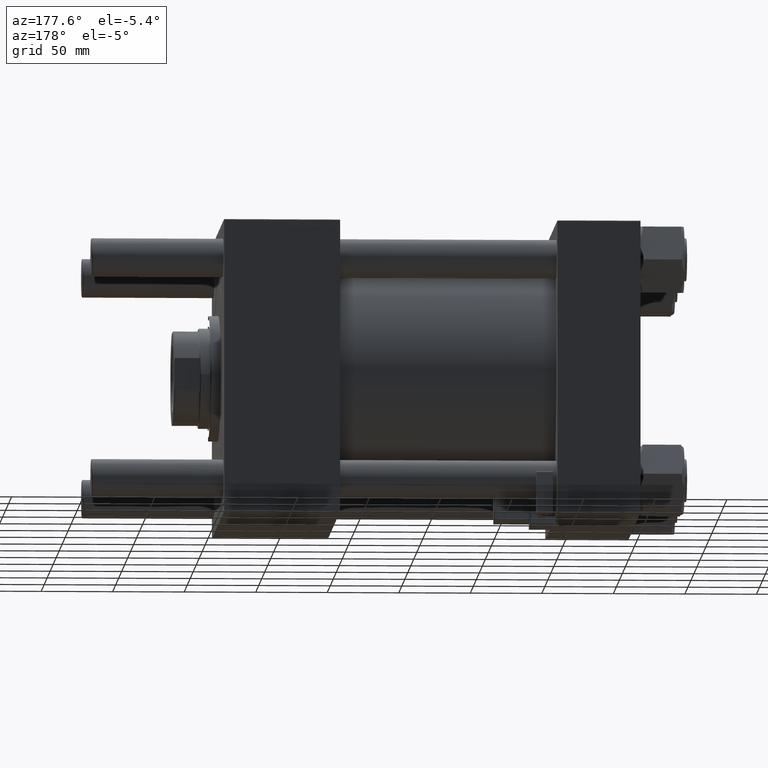
[diagram: clean part render]
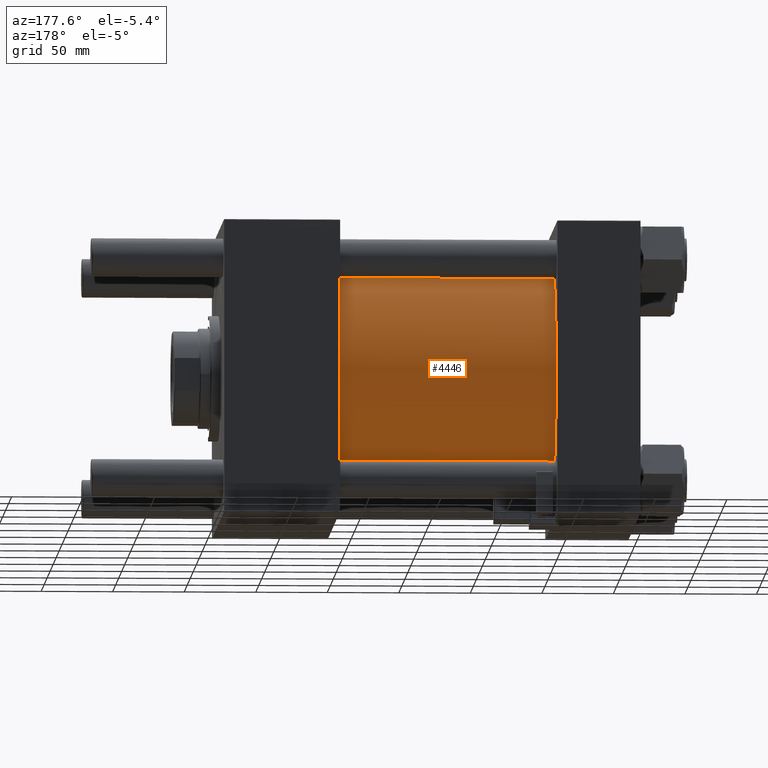
[diagram: same view with one face highlighted and labeled with its STEP entity id]
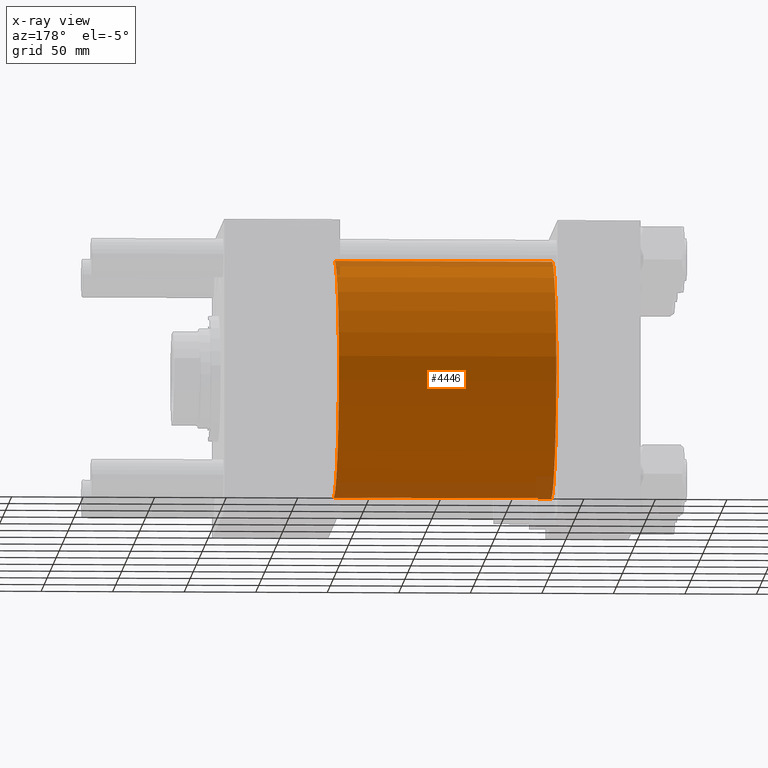
[diagram: x-ray of the same camera — body ghosted, the highlighted face saturated]
A machine part, auxiliary view. The second image highlights one B-rep face of the part: STEP entity #4446.
The next image is the same camera in x-ray: the body ghosted, the highlighted face saturated — about 9% of this face is hidden behind the body in this view.
In plain terms, the highlighted cylindrical surface (partial cylindrical patch) has radius 83 mm, axis along (-1, -0, -0).
Its self-contained STEP definition (entity closure, byte-faithful):
#1044 = VERTEX_POINT ( 'NONE', #18972 ) ;
#1262 = AXIS2_PLACEMENT_3D ( 'NONE', #35292, #30793, #22374 ) ;
#2935 = EDGE_CURVE ( 'NONE', #1044, #17699, #16796, .T. ) ;
#3194 = CIRCLE ( 'NONE', #1262, 83.00000000000000000 ) ;
#3994 = LINE ( 'NONE', #4576, #30600 ) ;
#4161 = ORIENTED_EDGE ( 'NONE', *, *, #41527, .T. ) ;
#4446 = ADVANCED_FACE ( 'NONE', ( #25726 ), #40136, .T. ) ;
#4576 = CARTESIAN_POINT ( 'NONE',  ( 210.0000000000000000, 7.562483218957820855E-15, -83.00000000000000000 ) ) ;
#10563 = DIRECTION ( 'NONE',  ( 1.000000000000000000, -0.000000000000000000, -0.000000000000000000 ) ) ;
#11261 = VERTEX_POINT ( 'NONE', #44503 ) ;
#11881 = CARTESIAN_POINT ( 'NONE',  ( 210.0000000000000000, -2.602085213965210642E-15, 0.000000000000000000 ) ) ;
#14469 = AXIS2_PLACEMENT_3D ( 'NONE', #46993, #10563, #38224 ) ;
#16796 = LINE ( 'NONE', #29171, #40302 ) ;
#17699 = VERTEX_POINT ( 'NONE', #40193 ) ;
#17823 = EDGE_CURVE ( 'NONE', #11261, #1044, #3194, .T. ) ;
#18972 = CARTESIAN_POINT ( 'NONE',  ( 210.0000000000000000, -2.602085213965210642E-15, 83.00000000000000000 ) ) ;
#20903 = DIRECTION ( 'NONE',  ( 0.000000000000000000, 0.000000000000000000, 1.000000000000000000 ) ) ;
#22374 = DIRECTION ( 'NONE',  ( 0.000000000000000000, 0.000000000000000000, -1.000000000000000000 ) ) ;
#24621 = ORIENTED_EDGE ( 'NONE', *, *, #2935, .F. ) ;
#25726 = FACE_OUTER_BOUND ( 'NONE', #43968, .T. ) ;
#29171 = CARTESIAN_POINT ( 'NONE',  ( 210.0000000000000000, -2.602085213965210642E-15, 83.00000000000000000 ) ) ;
#29777 = AXIS2_PLACEMENT_3D ( 'NONE', #11881, #48300, #20903 ) ;
#30600 = VECTOR ( 'NONE', #31978, 1000.000000000000000 ) ;
#30793 = DIRECTION ( 'NONE',  ( 1.000000000000000000, 0.000000000000000000, 0.000000000000000000 ) ) ;
#31978 = DIRECTION ( 'NONE',  ( -1.000000000000000000, -0.000000000000000000, -0.000000000000000000 ) ) ;
#32057 = ORIENTED_EDGE ( 'NONE', *, *, #59317, .T. ) ;
#35292 = CARTESIAN_POINT ( 'NONE',  ( 210.0000000000000000, -2.602085213965210642E-15, 0.000000000000000000 ) ) ;
#37480 = CARTESIAN_POINT ( 'NONE',  ( 57.99999999999999289, 7.562483218957820855E-15, -83.00000000000000000 ) ) ;
#38224 = DIRECTION ( 'NONE',  ( 0.000000000000000000, 0.000000000000000000, 1.000000000000000000 ) ) ;
#40136 = CYLINDRICAL_SURFACE ( 'NONE', #29777, 83.00000000000000000 ) ;
#40193 = CARTESIAN_POINT ( 'NONE',  ( 57.99999999999999289, -2.602085213965210642E-15, 83.00000000000000000 ) ) ;
#40302 = VECTOR ( 'NONE', #52340, 1000.000000000000000 ) ;
#40414 = CIRCLE ( 'NONE', #14469, 83.00000000000000000 ) ;
#41527 = EDGE_CURVE ( 'NONE', #51176, #17699, #40414, .T. ) ;
#43968 = EDGE_LOOP ( 'NONE', ( #45979, #32057, #4161, #24621 ) ) ;
#44503 = CARTESIAN_POINT ( 'NONE',  ( 210.0000000000000000, 7.562483218957820855E-15, -83.00000000000000000 ) ) ;
#45979 = ORIENTED_EDGE ( 'NONE', *, *, #17823, .F. ) ;
#46993 = CARTESIAN_POINT ( 'NONE',  ( 57.99999999999999289, -2.602085213965210642E-15, 0.000000000000000000 ) ) ;
#48300 = DIRECTION ( 'NONE',  ( -1.000000000000000000, -0.000000000000000000, -0.000000000000000000 ) ) ;
#51176 = VERTEX_POINT ( 'NONE', #37480 ) ;
#52340 = DIRECTION ( 'NONE',  ( -1.000000000000000000, -0.000000000000000000, -0.000000000000000000 ) ) ;
#59317 = EDGE_CURVE ( 'NONE', #11261, #51176, #3994, .T. ) ;